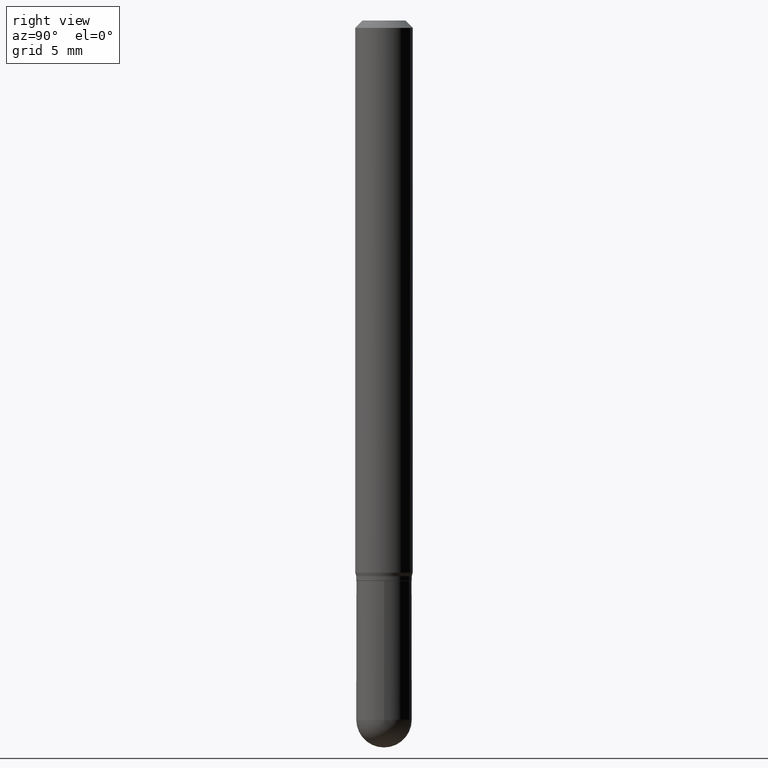
[diagram: clean part render]
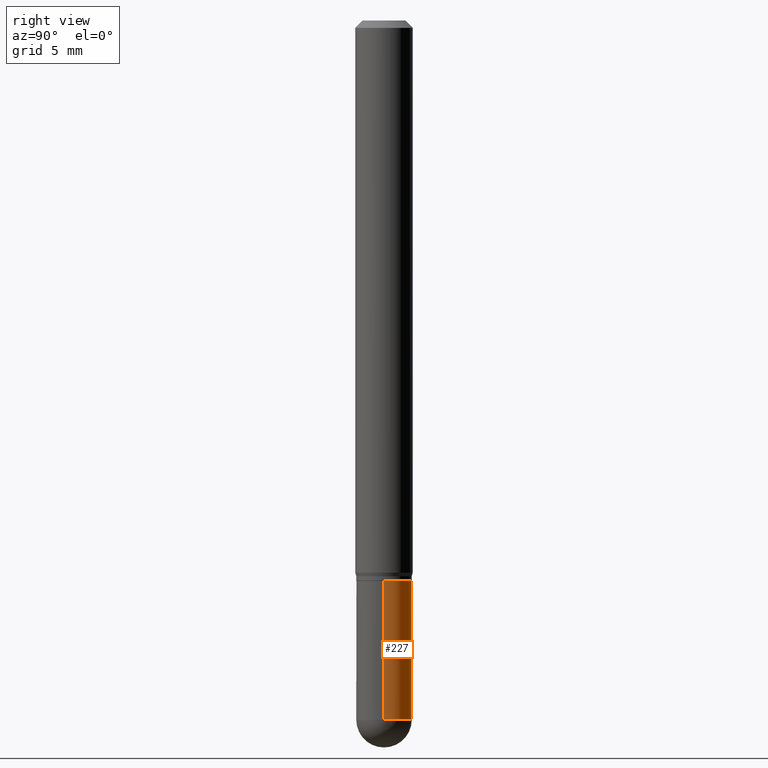
[diagram: same view with one face highlighted and labeled with its STEP entity id]
A machine part, right view. The second image highlights one B-rep face of the part: STEP entity #227.
In plain terms, the highlighted cylindrical surface (edge-blend (fillet) strip) has radius 1.4503 mm, axis along (-0, 0, 1).
Its self-contained STEP definition (entity closure, byte-faithful):
#10 = DIRECTION ( 'NONE',  ( -2.445468806185136597E-29, 3.491481338843145583E-15, 1.000000000000000000 ) ) ;
#11 = CARTESIAN_POINT ( 'NONE',  ( 3.519029612100411141E-29, -5.024241646595286064E-15, -1.438999999999999835 ) ) ;
#20 = VECTOR ( 'NONE', #431, 39.37007874015748143 ) ;
#25 = CARTESIAN_POINT ( 'NONE',  ( 0.05709999999999999798, -3.987271688958858118E-16, 2.784296938979478878E-30 ) ) ;
#41 = VERTEX_POINT ( 'NONE', #280 ) ;
#55 = DIRECTION ( 'NONE',  ( 1.000000000000000000, -6.982962677686268288E-15, 0.000000000000000000 ) ) ;
#87 = CARTESIAN_POINT ( 'NONE',  ( 0.05709999999999999798, -4.426500041385338787E-15, -1.153599999999999959 ) ) ;
#94 = EDGE_CURVE ( 'NONE', #335, #406, #118, .T. ) ;
#118 = LINE ( 'NONE', #277, #415 ) ;
#121 = DIRECTION ( 'NONE',  ( -2.445468806185136877E-29, 3.491481338843145188E-15, 1.000000000000000000 ) ) ;
#145 = CIRCLE ( 'NONE', #348, 0.05709999999999999798 ) ;
#165 = ORIENTED_EDGE ( 'NONE', *, *, #307, .T. ) ;
#170 = ORIENTED_EDGE ( 'NONE', *, *, #94, .T. ) ;
#171 = CYLINDRICAL_SURFACE ( 'NONE', #192, 0.05709999999999999798 ) ;
#185 = DIRECTION ( 'NONE',  ( -2.445468806185136597E-29, 3.491481338843145583E-15, 1.000000000000000000 ) ) ;
#192 = AXIS2_PLACEMENT_3D ( 'NONE', #244, #484, #448 ) ;
#206 = CARTESIAN_POINT ( 'NONE',  ( 3.519029612100411141E-29, -5.024241646595286064E-15, -1.438999999999999835 ) ) ;
#212 = CARTESIAN_POINT ( 'NONE',  ( -0.05709999999999999798, -4.120287357423351736E-15, -1.153599999999999959 ) ) ;
#227 = ADVANCED_FACE ( 'NONE', ( #306 ), #171, .T. ) ;
#231 = LINE ( 'NONE', #25, #20 ) ;
#244 = CARTESIAN_POINT ( 'NONE',  ( 0.000000000000000000, 0.000000000000000000, 0.000000000000000000 ) ) ;
#246 = DIRECTION ( 'NONE',  ( 1.000000000000000000, -6.982962677686259611E-15, 0.000000000000000000 ) ) ;
#253 = ORIENTED_EDGE ( 'NONE', *, *, #395, .F. ) ;
#277 = CARTESIAN_POINT ( 'NONE',  ( -0.05709999999999999798, 4.057199021190171918E-16, -2.808711936535550940E-30 ) ) ;
#280 = CARTESIAN_POINT ( 'NONE',  ( 4.057199021190523947E-16, 0.05709999999999498116, -1.439000000000000057 ) ) ;
#306 = FACE_OUTER_BOUND ( 'NONE', #446, .T. ) ;
#307 = EDGE_CURVE ( 'NONE', #41, #335, #452, .T. ) ;
#335 = VERTEX_POINT ( 'NONE', #401 ) ;
#348 = AXIS2_PLACEMENT_3D ( 'NONE', #361, #10, #55 ) ;
#349 = ORIENTED_EDGE ( 'NONE', *, *, #496, .T. ) ;
#361 = CARTESIAN_POINT ( 'NONE',  ( 2.821092814815173687E-29, -4.027772872489452384E-15, -1.153599999999999959 ) ) ;
#392 = DIRECTION ( 'NONE',  ( -2.445468806185136597E-29, 3.491481338843145583E-15, 1.000000000000000000 ) ) ;
#395 = EDGE_CURVE ( 'NONE', #411, #406, #145, .T. ) ;
#401 = CARTESIAN_POINT ( 'NONE',  ( -0.05709999999999999798, -4.120287357423352525E-15, -1.438999999999999835 ) ) ;
#404 = VERTEX_POINT ( 'NONE', #442 ) ;
#406 = VERTEX_POINT ( 'NONE', #212 ) ;
#411 = VERTEX_POINT ( 'NONE', #87 ) ;
#415 = VECTOR ( 'NONE', #121, 39.37007874015748143 ) ;
#419 = CIRCLE ( 'NONE', #451, 0.05709999999999999798 ) ;
#431 = DIRECTION ( 'NONE',  ( -2.445468806185136877E-29, 3.491481338843145188E-15, 1.000000000000000000 ) ) ;
#442 = CARTESIAN_POINT ( 'NONE',  ( 0.05709999999999999798, -4.924734428438255627E-15, -1.438999999999999835 ) ) ;
#446 = EDGE_LOOP ( 'NONE', ( #165, #170, #253, #462, #349 ) ) ;
#448 = DIRECTION ( 'NONE',  ( 1.000000000000000000, -6.982962677686266711E-15, 4.876176775795935232E-29 ) ) ;
#451 = AXIS2_PLACEMENT_3D ( 'NONE', #206, #392, #246 ) ;
#452 = CIRCLE ( 'NONE', #503, 0.05709999999999999798 ) ;
#461 = EDGE_CURVE ( 'NONE', #404, #411, #231, .T. ) ;
#462 = ORIENTED_EDGE ( 'NONE', *, *, #461, .F. ) ;
#484 = DIRECTION ( 'NONE',  ( -2.445468806185136597E-29, 3.491481338843145583E-15, 1.000000000000000000 ) ) ;
#490 = DIRECTION ( 'NONE',  ( 1.000000000000000000, -6.982962677686259611E-15, 0.000000000000000000 ) ) ;
#496 = EDGE_CURVE ( 'NONE', #404, #41, #419, .T. ) ;
#503 = AXIS2_PLACEMENT_3D ( 'NONE', #11, #185, #490 ) ;